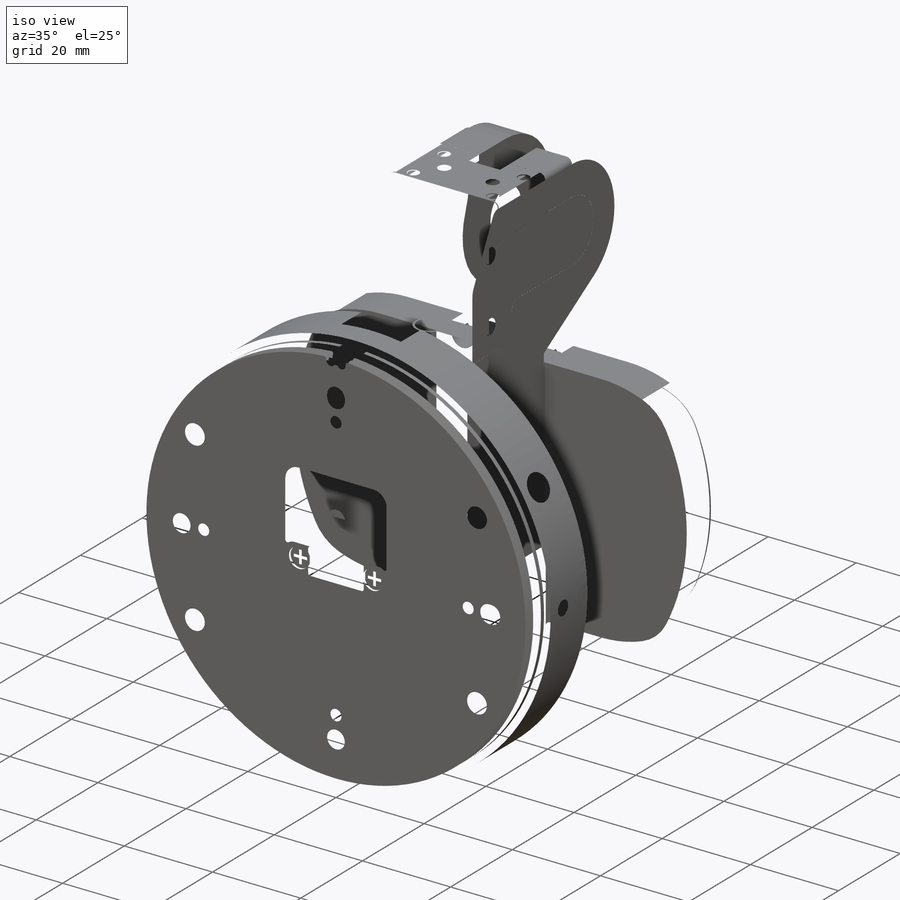
[diagram: iso view]
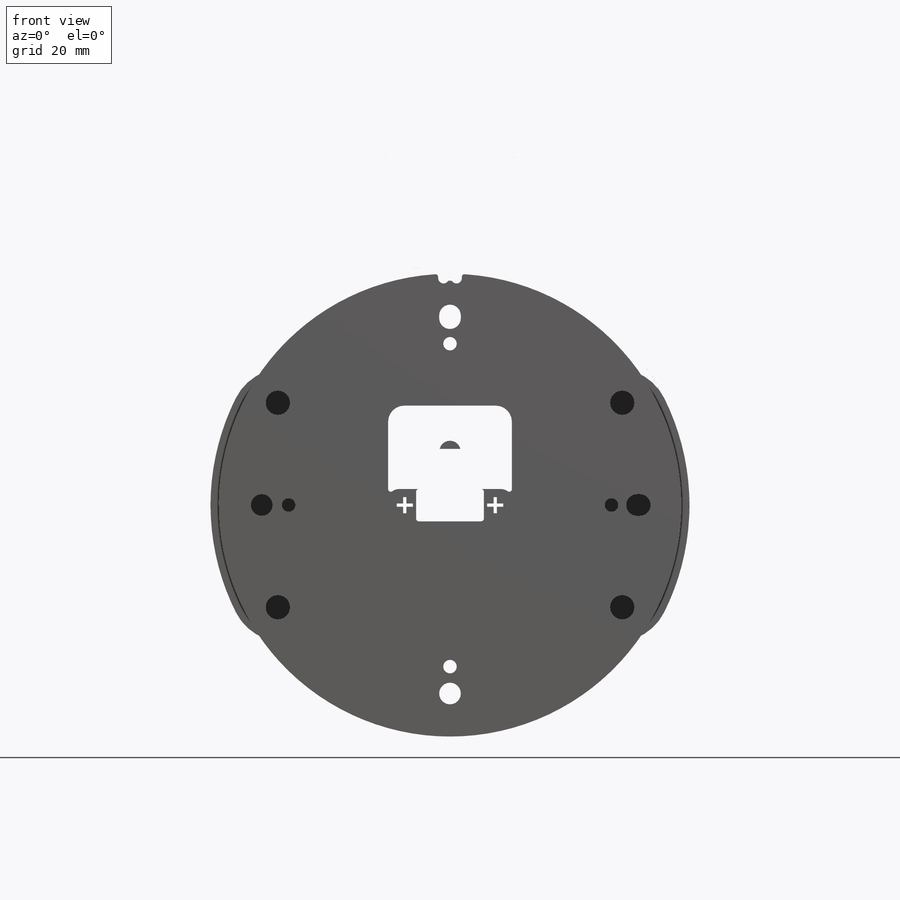
[diagram: front view]
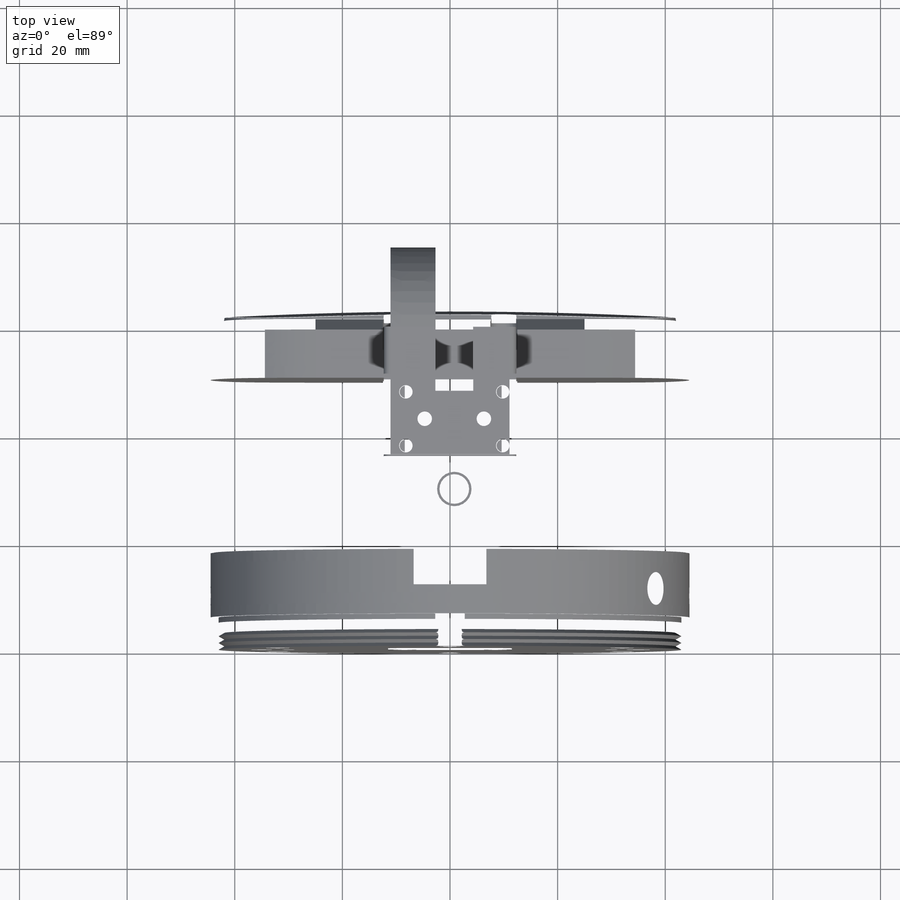
[diagram: top view]
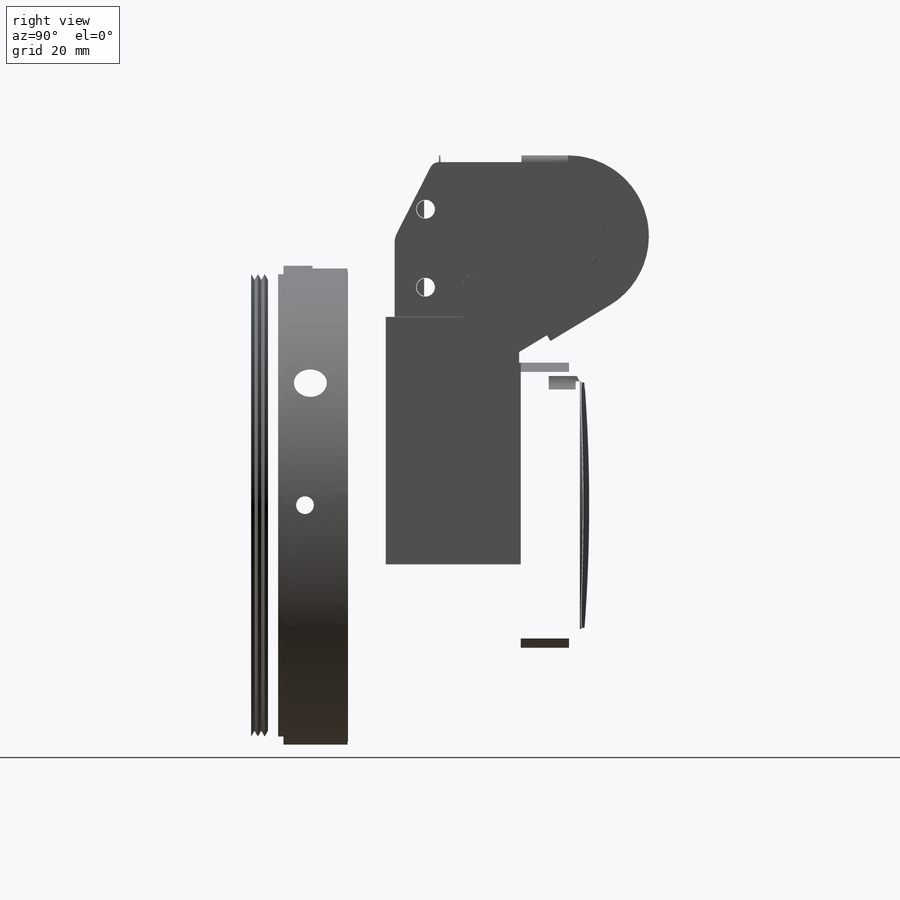
[diagram: right view]
SOLIDWORKS PART (.sldprt)
format: sldprt  version: not decoded by parser v0  size: 3,898,880 bytes
history: native  units: mm
features: sketch x50, cut_extrude x31, extrude x7, thread x4, plane x3, fillet x3, revolve x2, chamfer x2, hole x2, sweep x2, material x1, mirror x1, cut_revolve x1 (+11 scaffold rows collapsed)
feature tree (120):
  scaffold x11  (default folders/planes/origin — collapsed)
  material  "Material <not specified>"
  sketch  "Sketch1"  dims[c1.D12=1.0mm c1.D1=86.0mm c1.D2=1.25mm c1.D3=1.25mm c1.D4=~1.082532mm c2.D4=60.0deg c2.D5=0.25mm c2.D6=1.0mm c2.D7=1.0mm c2.D8=88.9mm c2.D9=33.5mm c2.D10=0.05mm c2.D11=1.0mm c3.D8=0.1mm c3.D9=43.95mm c3.D10=44.5mm c3.D11=7.0mm c3.D13=19.0mm c3.D3=3.0]
  revolve  "Revolve1"  Angle=360deg
  sketch  "Sketch2"  dims[c1.D1=3.02mm c1.D3=1.51mm c1.D9=3.02mm c1.D11=0.5mm c1.D2=35.0mm c1.D4=0.5mm c1.D5=35.0mm c1.D7=90.0deg c1.D8=35.0mm c2.D9=35.0mm c2.D8=35.0mm c3.D9=6.0mm c3.D10=12.6mm c3.D6=2.0]
  cut_extrude  "Cut-Extrude1"  Depth=3.5mm
  chamfer  "Chamfer1"  Distance=0.5mm Angle=45deg
  hole  "M3x0.5 Tapped Hole1"  Diameter=2.5mm Depth=8.5mm
  sketch  "Sketch4"  dims[D1=60.0mm]
  sketch  "Sketch3"  dims[hole-wizard template sketch: 50 standard entries collapsed; hole parameters above]
  thread  "Hole Thread1"  Diameter=6mm  [1 undecoded]
  thread  "Hole Thread2"  Diameter=6mm  [1 undecoded]
  thread  "Hole Thread3"  Diameter=6mm  [1 undecoded]
  thread  "Hole Thread4"  Diameter=6mm  [1 undecoded]
  sketch  "Sketch5"  dims[D1=~5.95478mm D2=6.0mm D3=12.6mm]
  cut_extrude  "Cut-Extrude2"  Depth=1mm
  hole  "M2.5x0.45 Tapped Hole1"  Diameter=2.05mm Depth=0.02mm
  sketch  "Sketch7"  dims[D1=16.8mm D2=8.4mm]
  sketch  "Sketch6"  dims[hole-wizard template sketch: 47 standard entries collapsed; hole parameters kept: c15.Tap Drill Depth=0.02mm c15.D3=~14.816244mm c15.Drill Angle=118.0deg]
  sketch  "Sketch10"  dims[c1.D3=0.5mm c1.D4=0.5mm c1.D1=4.3mm c1.D2=10.9mm c2.D4=1.0mm c2.D5=4.0mm c2.D8=8.0mm c2.D9=2.0mm c2.D10=0.4mm c2.D11=0.5mm c2.D12=0.5mm c2.D13=0.4mm c2.D3=0.5mm c3.D5=1.0mm c3.D6=4.0mm c3.D9=2.0mm c3.D12=2.0mm c3.D7=5.0 c3.D8=2.0]
  cut_extrude  "Cut-Extrude5"  Depth=5mm
  sketch  "Sketch11"  dims[D2=1.0mm D3=1.0mm D1=4.4mm]
  sketch  "Sketch12"  dims[D3=0.5mm D1=6.6mm D2=13.5mm D4=9.7mm]
  cut_extrude  "Cut-Extrude7"  Depth=43mm
  sketch  "Sketch13"  dims[D7=0.5mm D1=4.3mm D2=10.9mm D3=0.5mm D4=0.4mm D5=1.15mm D6=0.4mm D8=4.0mm D9=1.0mm D12=8.0mm D13=2.0mm D10=5.0 D11=2.0]
  cut_extrude  "Cut-Extrude8"  Depth=5mm
  plane  "Plane1"
  sketch  "Sketch16"  dims[D1=18.0mm D2=25.0mm]
  cut_extrude  "Cut-Extrude11"  Depth=5mm
  sketch  "Sketch17"  dims[c1.D3=5.0mm c1.D4=3.0mm c1.D5=15.0mm c1.D18=4.0mm c1.D1=0.4mm c1.D2=35.0mm c1.D6=~15.44567mm c2.D6=153.0deg c2.D7=27.0mm c2.D8=24.8mm c2.D9=50.0mm c2.D10=33.9mm c2.D11=13.8mm c2.D12=15.0mm c3.D11=0.5mm c3.D13=0.3mm c3.D14=26.5mm c3.D15=8.5mm c3.D16=~5.838885mm c4.D16=60.0deg c4.D17=42.0mm c4.D19=29.15mm]
  extrude  "Boss-Extrude1"  Depth=24.6mm
  sketch  "Sketch18"  dims[D1=44.5mm D2=10.0mm D4=26.5mm D3=25.0mm]
  extrude  "Boss-Extrude2"  Depth=15mm
  sketch  "Sketch19"  dims[c1.D1=0.05mm c1.D3=0.1mm c1.D2=~5.056152mm c2.D2=170.0deg c2.D4=3.5mm c2.D5=0.5mm]
  sketch  "Sketch20"  dims[D1=10.0mm D2=23.0mm D4=42.0mm D3=25.0mm]
  sweep  "Cut-Sweep1"
  plane  "Plane2"
  sketch  "Sketch21"  dims[D2=300.0mm D1=14.0mm D3=0.25mm]
  sketch  "Sketch22"  dims[D1=800.0mm D2=84.0mm D3=~77.586819mm]
  sweep  "Cut-Sweep2"
  sketch  "Sketch24"  dims[D1=31.0mm]
  extrude  "Boss-Extrude3"  Depth=25mm
  sketch  "Sketch23"  dims[D1=~31.50091mm D2=19.0mm D3=10.0mm]
  cut_extrude  "Cut-Extrude12"  Depth=1mm
  sketch  "Sketch25"  dims[D1=3.3mm D2=16.8mm D3=21.0mm]
  cut_extrude  "Cut-Extrude13"  Depth=0.1mm
  sketch  "Sketch26"  dims[D1=2.5mm D2=5.0mm D3=20.0mm]
  cut_extrude  "Cut-Extrude14"  Depth=5.2mm
  sketch  "Sketch27"  dims[D1=0.01mm]
  cut_extrude  "Cut-Extrude15"  Depth=5mm
  sketch  "Sketch28"  dims[D1=0.6mm]
  cut_extrude  "Cut-Extrude16"  Depth=0.3mm
  sketch  "Sketch29"  dims[D1=0.6mm D2=0.3mm D3=1.6mm D4=4.0]
  cut_extrude  "Cut-Extrude17"  Depth=1mm
  sketch  "Sketch30"  dims[D1=4.5mm D2=4.5mm]
  extrude  "Boss-Extrude4"  Depth=2.5mm
  sketch  "Sketch31"  dims[D1=2.0mm]
  cut_extrude  "Cut-Extrude18"  Depth=1.25mm
  sketch  "Sketch32"  dims[c1.D1=14.0mm c1.D2=20.0mm c1.D3=~13.98287mm c2.D3=30.0deg c2.D4=1.2mm c2.D5=3.3mm c2.D6=12.0mm]
  cut_extrude  "Cut-Extrude19"  Depth=7mm
  sketch  "Sketch33"  dims[D1=10.0mm]
  cut_extrude  "Cut-Extrude20"  Depth=7mm
  sketch  "Sketch34"  dims[D2=7.0mm D3=2.0mm D1=14.0mm D4=0.01mm]
  cut_extrude  "Cut-Extrude21"  Depth=1.25mm
  sketch  "Sketch35"  dims[D1=6.4mm D5=2.5mm D6=2.0mm D2=3.8mm D3=12.6mm D4=11.0mm]
  cut_extrude  "Cut-Extrude22"  Depth=25.9mm
  sketch  "Sketch36"  dims[D1=5.5mm D3=2.0mm D2=1.0mm]
  extrude  "Boss-Extrude5"  Depth=2mm
  fillet  "Fillet1"  Radius=1.25mm
  chamfer  "Chamfer2"  Distance=0.25mm Angle=45deg
  sketch  "Sketch37"  dims[D6=2.7mm D1=9.8mm D2=15.0mm D4=11.0mm D5=1.0mm D7=0.01mm D8=0.01mm D9=0.01mm D3=0.01mm]
  cut_extrude  "Cut-Extrude23"  Depth=1.25mm
  sketch  "Sketch38"  dims[c1.D1=2.7mm c1.D2=2.7mm c1.D3=2.5mm c2.D1=5.0mm c2.D2=3.5mm]
  cut_extrude  "Cut-Extrude24"  Depth=0.1mm
  sketch  "Sketch39"  dims[c1.D1=0.4mm c1.D4=0.4mm c2.D1=0.0mm c2.D2=0.0mm c2.D3=0.0mm]
  cut_extrude  "Cut-Extrude25"  Depth=0.3mm
  fillet  "Fillet2"  Radius=0.1mm
  sketch  "Sketch40"  dims[D1=3.5mm D2=14.5mm D3=5.5mm D4=7.0mm]
  cut_extrude  "Cut-Extrude26"  Depth=0.1mm
  sketch  "Sketch41"  dims[c1.D1=0.5mm c1.D2=0.5mm c1.D3=1.25mm c2.D1=0.5mm]
  cut_extrude  "Cut-Extrude27"  Depth=0.5mm
  sketch  "Sketch42"  dims[D1=12.0mm]
  extrude  "Boss-Extrude6"  Depth=0.05mm
  fillet  "Fillet3"  Radius=1mm
  sketch  "Sketch43"  dims[D1=5.0mm D2=0.25mm]
  extrude  "Boss-Extrude7"  Depth=0.2mm
  mirror  "Mirror1"
  sketch  "Sketch44"  dims[c1.D5=4.0mm c1.D6=0.3mm c2.D5=0.3mm c2.D6=4.0mm c2.D1=10.0mm c2.D2=1.0mm c2.D3=3.3mm c2.D4=0.7mm c3.D3=1.65mm c3.D2=0.7mm c3.D4=0.75mm c4.D2=0.7mm]
  revolve  "Revolve2"  Angle=360deg
  sketch  "Sketch45"
  cut_extrude  "Cut-Extrude28"  [1 undecoded]
  sketch  "Sketch46"  dims[c1.D1=2.0mm c1.D2=0.5mm c1.D3=3.0mm c2.D2=2.0mm c2.D3=0.5mm c2.D4=15.5mm c2.D5=23.0mm c2.D6=0.85mm c2.D1=0.85mm c3.D5=23.0mm c3.D6=16.35mm c3.D7=9.5mm]
  cut_extrude  "Cut-Extrude29"  Depth=0.2mm
  sketch  "Sketch47"  dims[D1=3.96mm D2=4.572mm D3=10.0mm]
  cut_extrude  "Cut-Extrude30"  Depth=1.03mm
  sketch  "Sketch48"  dims[D2=0.9mm D1=0.0mm]
  cut_extrude  "Cut-Extrude31"  Depth=0.59mm
  sketch  "Sketch49"  dims[D1=4.5mm D2=32.0mm D3=19.0mm]
  cut_extrude  "Cut-Extrude32"  Depth=1.2mm
  sketch  "Sketch50"  dims[D1=2.0mm]
  cut_extrude  "Cut-Extrude33"  Depth=1.25mm
  plane  "Plane3"
  sketch  "Sketch51"  dims[c1.D1=~4.208379mm c2.D1=45.0deg c2.D2=3.05mm c3.D1=3.05mm c3.D2=11.0mm c3.D3=~2.487252mm c4.D3=135.0deg c4.D4=1.25mm c4.D1=~4.504632mm c5.D1=45.0deg c5.D2=3.05mm c5.D3=1.25mm c5.D4=22.0mm]
  cut_revolve  "Cut-Revolve1"  Angle=360deg
  sketch  "Sketch52"  dims[D1=4.5mm]
  cut_extrude  "Cut-Extrude34"  Depth=0.5mm
  sketch  "Sketch53"  dims[D1=0.6mm D2=3.0mm]
  cut_extrude  "Cut-Extrude35"  Depth=1.25mm
  sketch  "Sketch54"  dims[D3=2.0mm D5=0.5mm D1=42.2mm D2=1.2mm D4=0.5mm]
  cut_extrude  "Cut-Extrude36"  [1 undecoded]
decode coverage: 99 of 105 modeling features carry decoded parameters
note: ~ marks probable driven/reference dimensions
note: 6 parameter values undecoded
note: suppression state not decoded; provenance and decode notes live in map.json
